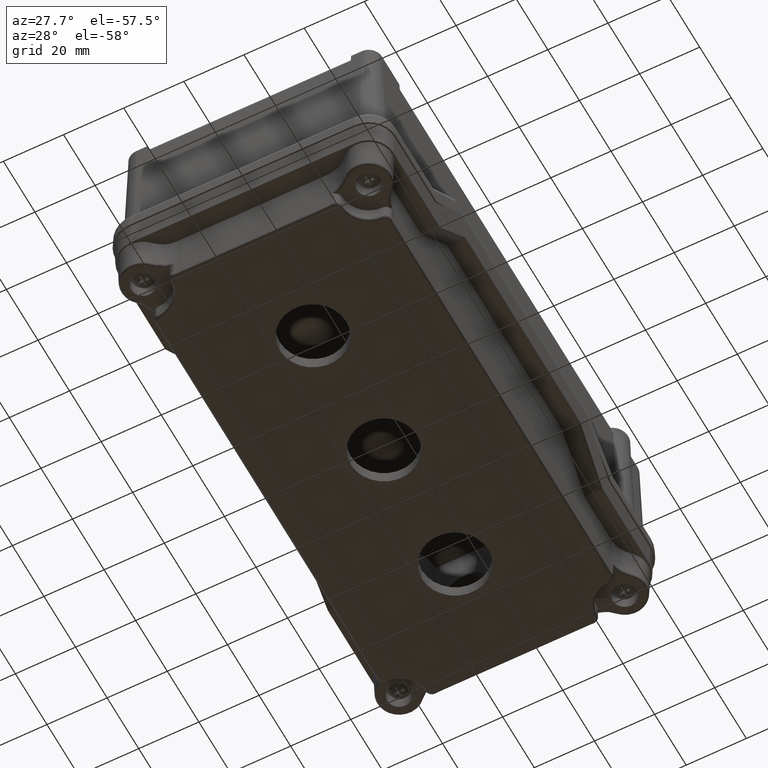
[diagram: clean part render]
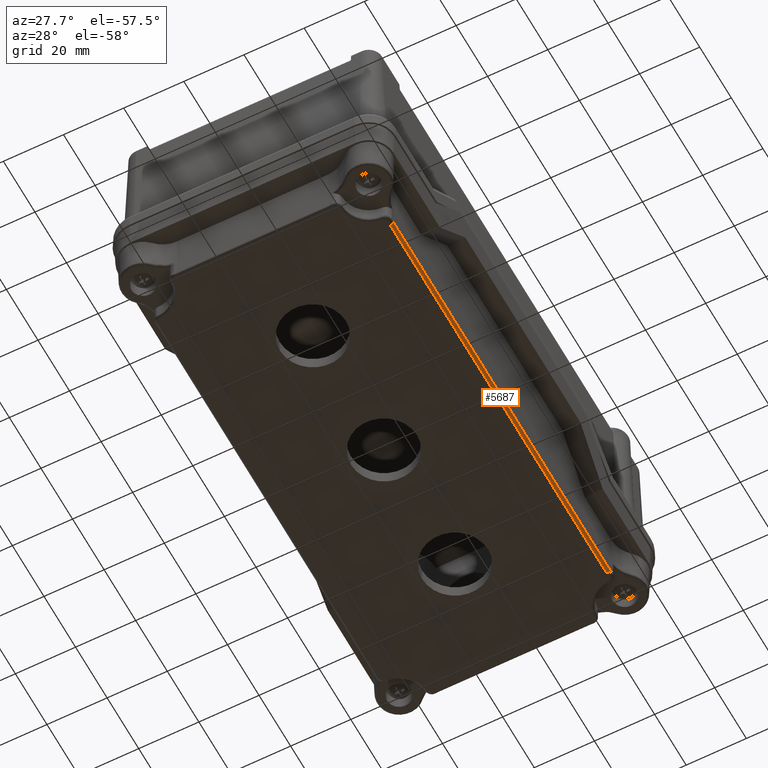
[diagram: same view with one face highlighted and labeled with its STEP entity id]
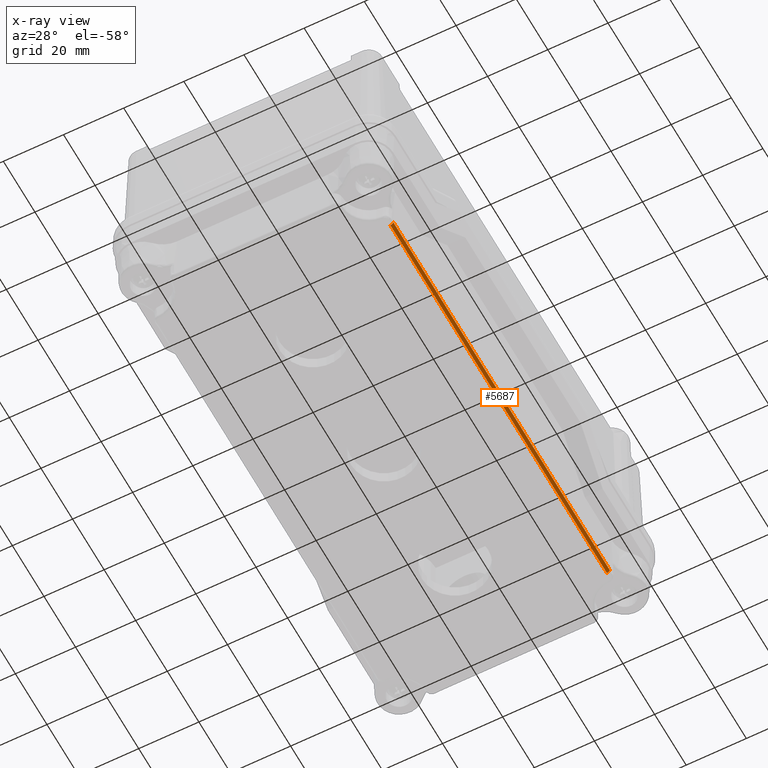
[diagram: x-ray of the same camera — body ghosted, the highlighted face saturated]
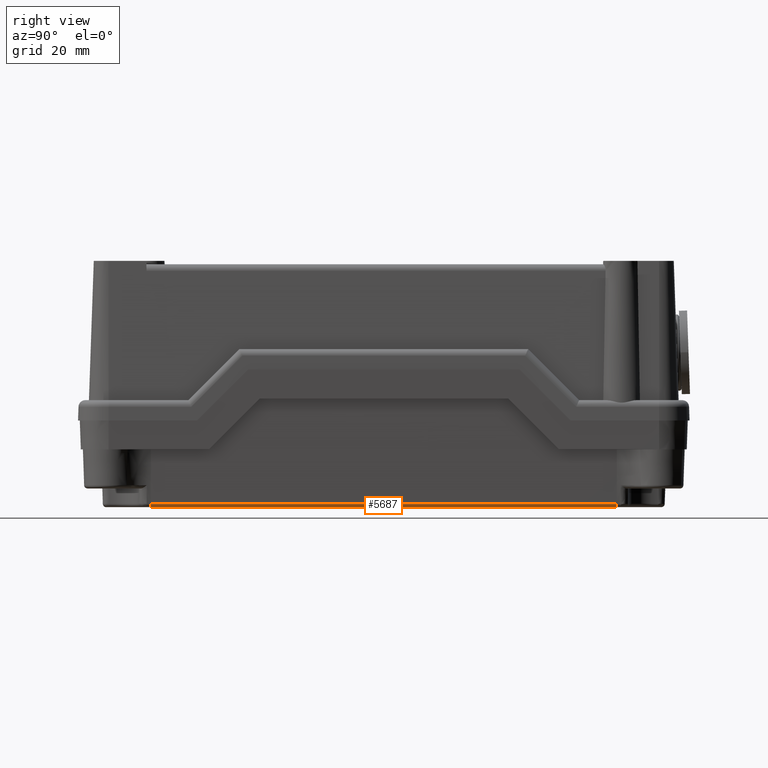
[diagram: same view with one face highlighted and labeled with its STEP entity id]
A machine part, auxiliary view. The second image highlights one B-rep face of the part: STEP entity #5687.
The next image is the same camera in x-ray: the body ghosted, the highlighted face saturated — about 0% of this face is hidden behind the body in this view.
A second angle (right view) of the same face is appended — the face is thin or edge-on in the first view.
In plain terms, the highlighted cylindrical surface (edge-blend (fillet) strip) has radius 1 mm, axis along (-0, -1, -0).
Its self-contained STEP definition (entity closure, byte-faithful):
#5544=CARTESIAN_POINT('',(-1.336132361597512,82.261391683954855,39.534899496702501));
#5545=VERTEX_POINT('',#5544);
#5648=CARTESIAN_POINT('',(-0.336741534578406,47.981748401560878,39.500000000000000));
#5649=DIRECTION('',(2.995820E-016,-1.0,0.0));
#5650=DIRECTION('',(-0.694658370458999,0.0,0.719339800338650));
#5651=AXIS2_PLACEMENT_3D('',#5648,#5649,#5650);
#5652=CYLINDRICAL_SURFACE('',#5651,1.0);
#5653=CARTESIAN_POINT('',(-0.336741534578417,82.261391683954855,40.500000000000000));
#5654=VERTEX_POINT('',#5653);
#5655=CARTESIAN_POINT('',(-0.336741534578417,82.261391683954855,39.500000000000000));
#5656=DIRECTION('',(0.0,-1.0,0.0));
#5657=DIRECTION('',(0.0,0.0,1.0));
#5658=AXIS2_PLACEMENT_3D('',#5655,#5656,#5657);
#5659=CIRCLE('',#5658,0.999999999999996);
#5660=EDGE_CURVE('',#5654,#5545,#5659,.T.);
#5661=ORIENTED_EDGE('',*,*,#5660,.T.);
#5662=CARTESIAN_POINT('',(-1.336132361597469,-54.857181445621052,39.534899496702501));
#5663=VERTEX_POINT('',#5662);
#5664=CARTESIAN_POINT('',(-1.336132361597512,82.261391683954855,39.534899496702501));
#5665=DIRECTION('',(0.0,-1.0,0.0));
#5666=VECTOR('',#5665,137.118573129575910);
#5667=LINE('',#5664,#5666);
#5668=EDGE_CURVE('',#5545,#5663,#5667,.T.);
#5669=ORIENTED_EDGE('',*,*,#5668,.T.);
#5670=CARTESIAN_POINT('',(-0.336741534578376,-54.857181445621052,40.500000000000000));
#5671=VERTEX_POINT('',#5670);
#5672=CARTESIAN_POINT('',(-0.336741534578376,-54.857181445621052,39.500000000000000));
#5673=DIRECTION('',(0.0,1.0,0.0));
#5674=DIRECTION('',(-0.999390827019096,0.0,0.034899496702501));
#5675=AXIS2_PLACEMENT_3D('',#5672,#5673,#5674);
#5676=CIRCLE('',#5675,0.999999999999998);
#5677=EDGE_CURVE('',#5663,#5671,#5676,.T.);
#5678=ORIENTED_EDGE('',*,*,#5677,.T.);
#5679=CARTESIAN_POINT('',(-0.336741534578376,-54.857181445621052,40.500000000000000));
#5680=DIRECTION('',(0.0,1.0,0.0));
#5681=VECTOR('',#5680,137.118573129575910);
#5682=LINE('',#5679,#5681);
#5683=EDGE_CURVE('',#5671,#5654,#5682,.T.);
#5684=ORIENTED_EDGE('',*,*,#5683,.T.);
#5685=EDGE_LOOP('',(#5661,#5669,#5678,#5684));
#5686=FACE_OUTER_BOUND('',#5685,.T.);
#5687=ADVANCED_FACE('',(#5686),#5652,.T.);